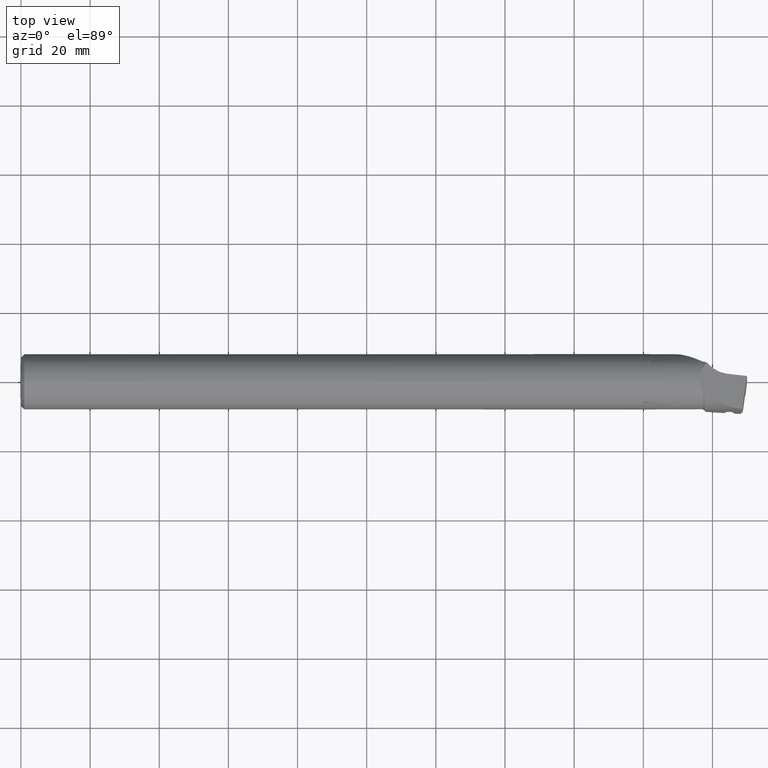
[diagram: clean part render]
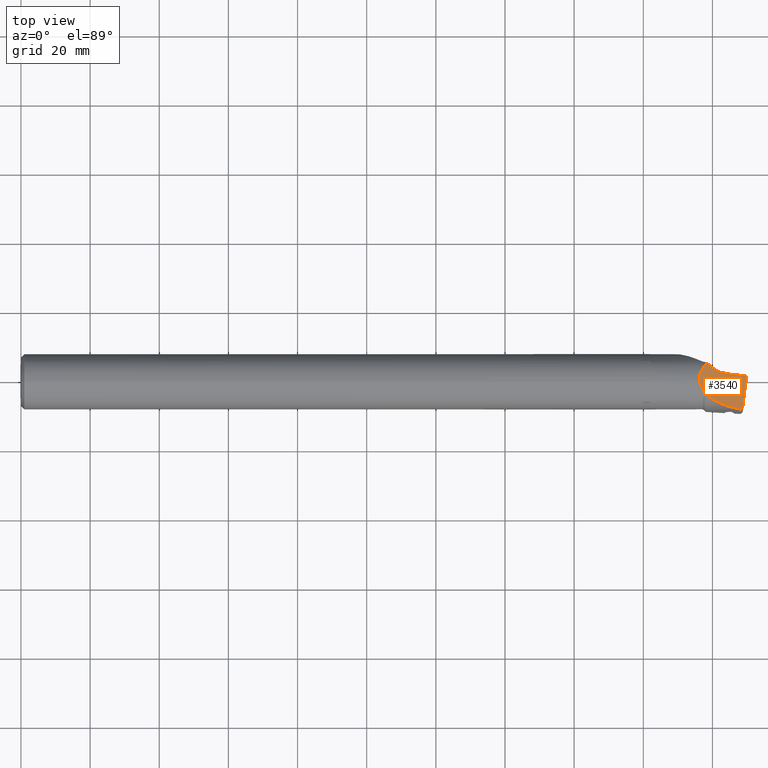
[diagram: same view with one face highlighted and labeled with its STEP entity id]
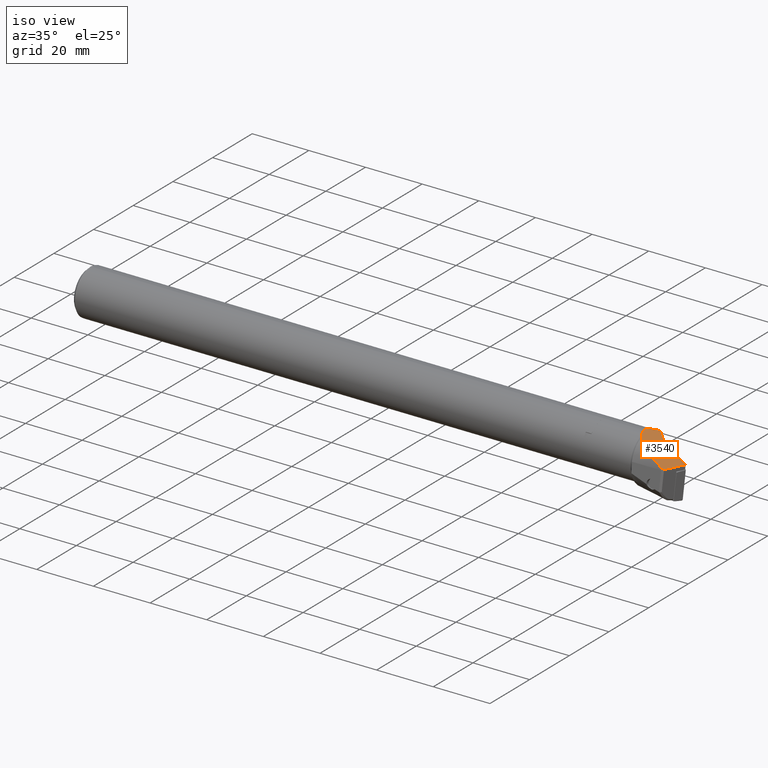
[diagram: same view with one face highlighted and labeled with its STEP entity id]
A machine part, top view. The second image highlights one B-rep face of the part: STEP entity #3540.
A second angle (iso view) of the same face is appended — the face is thin or edge-on in the first view.
In plain terms, the highlighted planar face has unit normal (0.4963, 0.0904, 0.8634).
Its self-contained STEP definition (entity closure, byte-faithful):
#65 = EDGE_CURVE ( 'NONE', #1503, #1500, #3411, .T. ) ;
#83 = EDGE_CURVE ( 'NONE', #1567, #1534, #3388, .T. ) ;
#84 = EDGE_CURVE ( 'NONE', #1567, #1745, #3394, .T. ) ;
#85 = EDGE_CURVE ( 'NONE', #1745, #1748, #1199, .T. ) ;
#86 = EDGE_CURVE ( 'NONE', #1500, #1748, #1206, .T. ) ;
#87 = EDGE_CURVE ( 'NONE', #1656, #1503, #3406, .T. ) ;
#88 = EDGE_CURVE ( 'NONE', #1656, #1499, #3393, .T. ) ;
#89 = EDGE_CURVE ( 'NONE', #1471, #1744, #3403, .T. ) ;
#90 = EDGE_CURVE ( 'NONE', #1744, #1534, #3407, .T. ) ;
#553 = CARTESIAN_POINT ( 'NONE',  ( 17.20000000000004900, 3.755541971740543200, 7.063703313312024600 ) ) ;
#554 = CARTESIAN_POINT ( 'NONE',  ( 16.33658812917184000, 2.593362122764152100, 7.681596648854103600 ) ) ;
#560 = CARTESIAN_POINT ( 'NONE',  ( 16.01518346170564300, 1.316227250695752600, 8.000000000000019500 ) ) ;
#561 = CARTESIAN_POINT ( 'NONE',  ( 16.25487764449842100, 8.173732943820267100E-017, 8.000000000000012400 ) ) ;
#709 = CARTESIAN_POINT ( 'NONE',  ( 16.25487764449842100, 8.173732943820267100E-017, 8.000000000000012400 ) ) ;
#719 = CARTESIAN_POINT ( 'NONE',  ( 17.20000000000004900, 3.755541971740543200, 7.063703313312024600 ) ) ;
#722 = CARTESIAN_POINT ( 'NONE',  ( 24.31901265563577000, 2.266005901280355500, 3.127912167706429400 ) ) ;
#724 = CARTESIAN_POINT ( 'NONE',  ( 18.44594857874853800, 5.394066060381171600, 6.176087057048669700 ) ) ;
#740 = CARTESIAN_POINT ( 'NONE',  ( 17.72915026221298600, -3.315781886490495100, 7.499706026320079200 ) ) ;
#747 = CARTESIAN_POINT ( 'NONE',  ( 28.08895556677691700, -7.944791590666092400, 2.029848905924140500 ) ) ;
#783 = ORIENTED_EDGE ( 'NONE', *, *, #90, .T. ) ;
#1197 = VECTOR ( 'NONE', #2400, 1000.000000000000000 ) ;
#1199 = LINE ( 'NONE', #2393, #1200 ) ;
#1200 = VECTOR ( 'NONE', #2395, 999.9999999999998900 ) ;
#1206 = LINE ( 'NONE', #2399, #1197 ) ;
#1441 = EDGE_CURVE ( 'NONE', #1499, #1471, #4970, .T. ) ;
#1471 = VERTEX_POINT ( 'NONE', #709 ) ;
#1499 = VERTEX_POINT ( 'NONE', #719 ) ;
#1500 = VERTEX_POINT ( 'NONE', #722 ) ;
#1503 = VERTEX_POINT ( 'NONE', #724 ) ;
#1534 = VERTEX_POINT ( 'NONE', #740 ) ;
#1567 = VERTEX_POINT ( 'NONE', #747 ) ;
#1656 = VERTEX_POINT ( 'NONE', #3679 ) ;
#1744 = VERTEX_POINT ( 'NONE', #3714 ) ;
#1745 = VERTEX_POINT ( 'NONE', #3715 ) ;
#1748 = VERTEX_POINT ( 'NONE', #3718 ) ;
#2308 = CARTESIAN_POINT ( 'NONE',  ( 20.03677730345767200, 3.579001329078760100, 5.451725996893344500 ) ) ;
#2318 = CARTESIAN_POINT ( 'NONE',  ( 18.44594857874853800, 5.394066060381171600, 6.176087057048669700 ) ) ;
#2320 = CARTESIAN_POINT ( 'NONE',  ( 22.08450497907624000, 2.488358476398444100, 4.388936284518893900 ) ) ;
#2321 = CARTESIAN_POINT ( 'NONE',  ( 24.31901265563577000, 2.266005901280355500, 3.127912167706429400 ) ) ;
#2382 = CARTESIAN_POINT ( 'NONE',  ( 23.65794380962771400, -7.311058334589776400, 4.510269310076555600 ) ) ;
#2383 = CARTESIAN_POINT ( 'NONE',  ( 19.95667686852005900, -5.657243413899731600, 6.464495353628243500 ) ) ;
#2389 = CARTESIAN_POINT ( 'NONE',  ( 28.30629121167773800, -7.804421985229240000, 1.890241816218384300 ) ) ;
#2390 = CARTESIAN_POINT ( 'NONE',  ( 28.08895556677691700, -7.944791590666092400, 2.029848905924140500 ) ) ;
#2391 = CARTESIAN_POINT ( 'NONE',  ( 17.95053545084448400, 5.003212741325046200, 6.501738310511906400 ) ) ;
#2392 = CARTESIAN_POINT ( 'NONE',  ( 17.72915026221298600, -3.315781886490495100, 7.499706026320079200 ) ) ;
#2393 = CARTESIAN_POINT ( 'NONE',  ( 25.02947988510534200, -37.14841585672160600, 6.844960736861401600 ) ) ;
#2394 = CARTESIAN_POINT ( 'NONE',  ( 28.08895556677691700, -7.944791590666092400, 2.029848905924140500 ) ) ;
#2395 = DIRECTION ( 'NONE',  ( 0.1218693434051454400, 0.9774671453588049700, -0.1723538304828405900 ) ) ;
#2396 = CARTESIAN_POINT ( 'NONE',  ( 28.51735912798072500, -7.666442777397525900, 1.754487338359143300 ) ) ;
#2397 = CARTESIAN_POINT ( 'NONE',  ( 28.72215931455773900, -7.530853968063489400, 1.622585473088187900 ) ) ;
#2398 = CARTESIAN_POINT ( 'NONE',  ( 17.72915026221297200, 4.796851575452409500, 6.650580047114684300 ) ) ;
#2399 = CARTESIAN_POINT ( 'NONE',  ( -10.03957845057674300, 5.684978809737494000, 22.51787106520502500 ) ) ;
#2400 = DIRECTION ( 'NONE',  ( 0.8676376859984119600, -0.08633735107516214700, -0.4896434495065213300 ) ) ;
#2401 = CARTESIAN_POINT ( 'NONE',  ( 17.72915026221297200, 4.796851575452409500, 6.650580047114684300 ) ) ;
#2402 = CARTESIAN_POINT ( 'NONE',  ( 16.39133850596067200, -0.7493444455651925300, 8.000000000000019500 ) ) ;
#2403 = CARTESIAN_POINT ( 'NONE',  ( 17.66045205170003700, 4.611665522497988300, 6.709447659709550000 ) ) ;
#2404 = CARTESIAN_POINT ( 'NONE',  ( 18.18964072556571000, 5.202427960156126300, 6.343459790423620100 ) ) ;
#2405 = CARTESIAN_POINT ( 'NONE',  ( 18.44594857874853800, 5.394066060381171600, 6.176087057048669700 ) ) ;
#2406 = CARTESIAN_POINT ( 'NONE',  ( 17.20000000000004900, -2.211496868951230900, 7.688256083054159100 ) ) ;
#2407 = CARTESIAN_POINT ( 'NONE',  ( 16.70844894808393700, -1.491352869961307000, 7.895402694945831400 ) ) ;
#2408 = CARTESIAN_POINT ( 'NONE',  ( 17.58316397206162000, 4.431414894291291000, 6.772735776068540000 ) ) ;
#2409 = CARTESIAN_POINT ( 'NONE',  ( 17.40990289194658300, 4.081649310257383000, 6.908927610804465000 ) ) ;
#2410 = CARTESIAN_POINT ( 'NONE',  ( 17.31459830490326400, 3.909794936270006200, 6.981692014583661200 ) ) ;
#2411 = CARTESIAN_POINT ( 'NONE',  ( 17.20000000000004900, 3.755541971740543200, 7.063703313312024600 ) ) ;
#2412 = CARTESIAN_POINT ( 'NONE',  ( 16.25487764449842100, 8.173732943820267100E-017, 8.000000000000012400 ) ) ;
#2413 = CARTESIAN_POINT ( 'NONE',  ( 17.31495592172219500, -2.379912370970588500, 7.639812020918975000 ) ) ;
#2414 = CARTESIAN_POINT ( 'NONE',  ( 17.20000000000004900, -2.211496868951230900, 7.688256083054159100 ) ) ;
#2417 = CARTESIAN_POINT ( 'NONE',  ( 17.40888347010708900, -2.560609779849634100, 7.604739658359265200 ) ) ;
#2418 = CARTESIAN_POINT ( 'NONE',  ( 17.58212177998090900, -2.930541730383754700, 7.543889579097439400 ) ) ;
#2419 = CARTESIAN_POINT ( 'NONE',  ( 17.65984271735178600, -3.120704830393205700, 7.519122813178033700 ) ) ;
#2420 = CARTESIAN_POINT ( 'NONE',  ( 17.72915026221298600, -3.315781886490495100, 7.499706026320079200 ) ) ;
#2611 = AXIS2_PLACEMENT_3D ( 'NONE', #2858, #2868, #2869 ) ;
#2858 = CARTESIAN_POINT ( 'NONE',  ( 25.02947988510534200, -37.14841585672160600, 6.844960736861401600 ) ) ;
#2866 = PLANE ( 'NONE',  #2611 ) ;
#2868 = DIRECTION ( 'NONE',  ( 0.4962730758206584900, 0.09037479606048934300, 0.8634497266503290400 ) ) ;
#2869 = DIRECTION ( 'NONE',  ( 0.8669976325389230400, 1.942890293094018500E-016, -0.4983122566944371800 ) ) ;
#3388 =( BOUNDED_CURVE ( )  B_SPLINE_CURVE ( 3, ( #2390, #2382, #2383, #2392 ),
 .UNSPECIFIED., .F., .F. ) 
 B_SPLINE_CURVE_WITH_KNOTS ( ( 4, 4 ),
 ( 1.716651970190840900, 2.621022309678902500 ),
 .UNSPECIFIED. ) 
 CURVE ( )  GEOMETRIC_REPRESENTATION_ITEM ( )  RATIONAL_B_SPLINE_CURVE ( ( 1.000000000000000000, 0.9329963198550634800, 0.9329963198550634800, 1.000000000000000000 ) ) 
 REPRESENTATION_ITEM ( '' )  );
#3393 = B_SPLINE_CURVE_WITH_KNOTS ( 'NONE', 3,
 ( #2401, #2403, #2408, #2409, #2410, #2411 ),
 .UNSPECIFIED., .F., .F.,
 ( 4, 2, 4 ),
 ( 0.0006438528938832889900, 0.001261913337146700200, 0.001879973780410111200 ),
 .UNSPECIFIED. ) ;
#3394 = B_SPLINE_CURVE_WITH_KNOTS ( 'NONE', 3,
 ( #2394, #2389, #2396, #2397 ),
 .UNSPECIFIED., .F., .F.,
 ( 4, 4 ),
 ( 0.0000000000000000000, 1.000000000000000000 ),
 .UNSPECIFIED. ) ;
#3403 =( BOUNDED_CURVE ( )  B_SPLINE_CURVE ( 3, ( #2412, #2402, #2407, #2414 ),
 .UNSPECIFIED., .F., .F. ) 
 B_SPLINE_CURVE_WITH_KNOTS ( ( 4, 4 ),
 ( 0.1042873961365966000, 0.3843721582058724500 ),
 .UNSPECIFIED. ) 
 CURVE ( )  GEOMETRIC_REPRESENTATION_ITEM ( )  RATIONAL_B_SPLINE_CURVE ( ( 1.000000000000000000, 0.9934733875611829700, 0.9934733875611829700, 1.000000000000000000 ) ) 
 REPRESENTATION_ITEM ( '' )  );
#3406 =( BOUNDED_CURVE ( )  B_SPLINE_CURVE ( 3, ( #2398, #2391, #2404, #2405 ),
 .UNSPECIFIED., .F., .F. ) 
 B_SPLINE_CURVE_WITH_KNOTS ( ( 4, 4 ),
 ( 3.662162997500683700, 3.755216552200284500 ),
 .UNSPECIFIED. ) 
 CURVE ( )  GEOMETRIC_REPRESENTATION_ITEM ( )  RATIONAL_B_SPLINE_CURVE ( ( 1.000000000000000000, 0.9992785498233005500, 0.9992785498233005500, 1.000000000000000000 ) ) 
 REPRESENTATION_ITEM ( '' )  );
#3407 = B_SPLINE_CURVE_WITH_KNOTS ( 'NONE', 3,
 ( #2406, #2413, #2417, #2418, #2419, #2420 ),
 .UNSPECIFIED., .F., .F.,
 ( 4, 2, 4 ),
 ( 3.592078370186770100E-007, 0.0006198321719619143900, 0.001239305136086810200 ),
 .UNSPECIFIED. ) ;
#3411 =( BOUNDED_CURVE ( )  B_SPLINE_CURVE ( 3, ( #2318, #2308, #2320, #2321 ),
 .UNSPECIFIED., .F., .F. ) 
 B_SPLINE_CURVE_WITH_KNOTS ( ( 4, 4 ),
 ( 3.746558510862781200, 4.477004050082562100 ),
 .UNSPECIFIED. ) 
 CURVE ( )  GEOMETRIC_REPRESENTATION_ITEM ( )  RATIONAL_B_SPLINE_CURVE ( ( 1.000000000000000000, 0.9560294803544646700, 0.9560294803544646700, 1.000000000000000000 ) ) 
 REPRESENTATION_ITEM ( '' )  );
#3457 = ORIENTED_EDGE ( 'NONE', *, *, #88, .T. ) ;
#3540 = ADVANCED_FACE ( 'NONE', ( #4954 ), #2866, .T. ) ;
#3679 = CARTESIAN_POINT ( 'NONE',  ( 17.72915026221297200, 4.796851575452409500, 6.650580047114684300 ) ) ;
#3714 = CARTESIAN_POINT ( 'NONE',  ( 17.20000000000004900, -2.211496868951230900, 7.688256083054159100 ) ) ;
#3715 = CARTESIAN_POINT ( 'NONE',  ( 28.72215931455773900, -7.530853968063489400, 1.622585473088187900 ) ) ;
#3718 = CARTESIAN_POINT ( 'NONE',  ( 29.87469210527357400, 1.713168403733809100, -0.007385081332321184400 ) ) ;
#4380 = EDGE_LOOP ( 'NONE', ( #4975, #4979, #4977, #4980, #4978, #4719, #3457, #4712, #4732, #783 ) ) ;
#4712 = ORIENTED_EDGE ( 'NONE', *, *, #1441, .T. ) ;
#4719 = ORIENTED_EDGE ( 'NONE', *, *, #87, .F. ) ;
#4732 = ORIENTED_EDGE ( 'NONE', *, *, #89, .T. ) ;
#4954 = FACE_OUTER_BOUND ( 'NONE', #4380, .T. ) ;
#4970 =( BOUNDED_CURVE ( )  B_SPLINE_CURVE ( 3, ( #553, #554, #560, #561 ),
 .UNSPECIFIED., .F., .T. ) 
 B_SPLINE_CURVE_WITH_KNOTS ( ( 4, 4 ),
 ( 5.898813148973713000, 6.387472703316182900 ),
 .UNSPECIFIED. ) 
 CURVE ( )  GEOMETRIC_REPRESENTATION_ITEM ( )  RATIONAL_B_SPLINE_CURVE ( ( 1.000000000000000000, 0.9801997825696158200, 0.9801997825696158200, 1.000000000000000000 ) ) 
 REPRESENTATION_ITEM ( '' )  );
#4975 = ORIENTED_EDGE ( 'NONE', *, *, #83, .F. ) ;
#4977 = ORIENTED_EDGE ( 'NONE', *, *, #85, .T. ) ;
#4978 = ORIENTED_EDGE ( 'NONE', *, *, #65, .F. ) ;
#4979 = ORIENTED_EDGE ( 'NONE', *, *, #84, .T. ) ;
#4980 = ORIENTED_EDGE ( 'NONE', *, *, #86, .F. ) ;